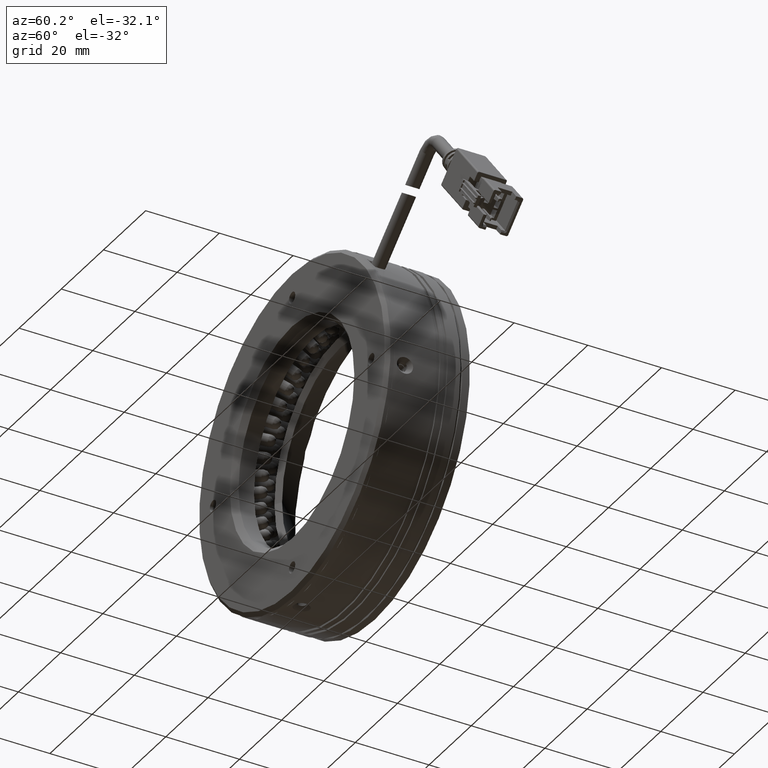
[diagram: clean part render]
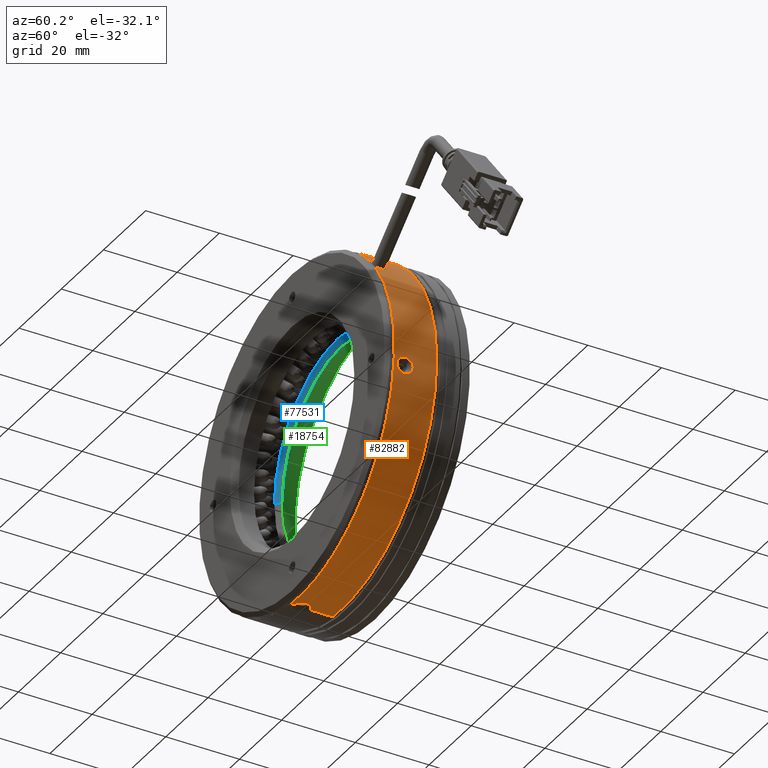
[diagram: same view with three faces highlighted in distinct colors, each labeled with its STEP entity id]
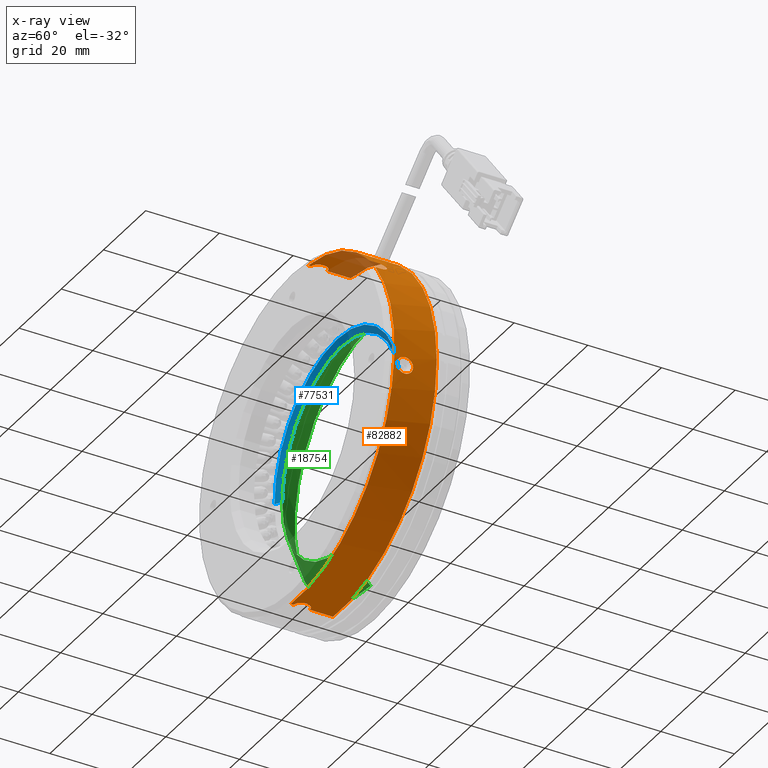
[diagram: x-ray of the same camera — body ghosted, the three highlighted faces saturated]
A machine part, auxiliary view with three faces highlighted in distinct colors.
The next image is the same camera in x-ray (body ghosted, the three faces saturated) — at least one of them is partly hidden behind the body in this view.
Their STEP definitions:

[orange] entity #82882 — the highlighted cylindrical surface (partial cylindrical patch) has radius 45 mm, axis along (0, -1, 0).
#60 = VERTEX_POINT ( 'NONE', #47998 ) ;
#393 = VERTEX_POINT ( 'NONE', #84697 ) ;
#1395 = CIRCLE ( 'NONE', #15986, 45.00000000000000700 ) ;
#2262 = CARTESIAN_POINT ( 'NONE',  ( -48.40538282923641600, 23.12712613698418800, 40.85430346701902200 ) ) ;
#2427 = LINE ( 'NONE', #133774, #82145 ) ;
#2497 = DIRECTION ( 'NONE',  ( -0.0000000000000000000, 1.000000000000000000, -0.0000000000000000000 ) ) ;
#2640 = CARTESIAN_POINT ( 'NONE',  ( -9.196373166500723800, 19.27890473584692900, -8.104605080240970600 ) ) ;
#2992 = CARTESIAN_POINT ( 'NONE',  ( -20.72851498799393300, 10.11989054203920400, 26.51166187494341700 ) ) ;
#3095 = CARTESIAN_POINT ( 'NONE',  ( -9.037750912952809300, 20.90711875958539800, -5.872238690176201800 ) ) ;
#3150 = CARTESIAN_POINT ( 'NONE',  ( -48.21001346499744500, 20.03431808472705100, 40.82943408567331300 ) ) ;
#3939 = ORIENTED_EDGE ( 'NONE', *, *, #86288, .F. ) ;
#4826 = CARTESIAN_POINT ( 'NONE',  ( -49.82683300941115300, 29.97876601230220900, 41.00908266944142600 ) ) ;
#5069 = CARTESIAN_POINT ( 'NONE',  ( -9.048659847270700500, 22.57118920583416300, -6.095365648213209500 ) ) ;
#5253 = CARTESIAN_POINT ( 'NONE',  ( -56.53100831380690700, 22.92321393987761600, -48.72623354329262900 ) ) ;
#5519 = CARTESIAN_POINT ( 'NONE',  ( -9.281916585237301100, 23.45201911957956000, -8.916610106360792500 ) ) ;
#6546 = VECTOR ( 'NONE', #46157, 1000.000000000000000 ) ;
#7577 = CARTESIAN_POINT ( 'NONE',  ( -20.58544596258533600, 21.09543933524702900, 26.35395674876221500 ) ) ;
#8034 = CARTESIAN_POINT ( 'NONE',  ( -18.94148272229450600, 22.13334174654216100, 24.42643509471976100 ) ) ;
#8432 = CARTESIAN_POINT ( 'NONE',  ( -56.02263285757086900, 21.19361178983627500, -48.75200222295365600 ) ) ;
#8480 = CARTESIAN_POINT ( 'NONE',  ( -18.07127207633601200, 20.17876601230220900, 23.31004785121663800 ) ) ;
#8911 = EDGE_LOOP ( 'NONE', ( #44755, #133098, #42022, #11586, #77919, #59740, #90082, #66246, #19947, #29560, #66923, #111739, #129888, #3939 ) ) ;
#8979 = CARTESIAN_POINT ( 'NONE',  ( -9.035356638104536500, 21.47876601230221300, -5.816923839393555600 ) ) ;
#9051 = DIRECTION ( 'NONE',  ( 0.0000000000000000000, -1.000000000000000000, 0.0000000000000000000 ) ) ;
#9755 = LINE ( 'NONE', #14779, #6546 ) ;
#11586 = ORIENTED_EDGE ( 'NONE', *, *, #33100, .T. ) ;
#11913 = VERTEX_POINT ( 'NONE', #52429 ) ;
#12670 = CARTESIAN_POINT ( 'NONE',  ( -9.423535213247674800, 20.91416994906289500, -10.02907784312119700 ) ) ;
#12684 = VERTEX_POINT ( 'NONE', #24488 ) ;
#12741 = CARTESIAN_POINT ( 'NONE',  ( -47.95613583957681700, 22.57678367984259900, 40.79583425891443900 ) ) ;
#13106 = CARTESIAN_POINT ( 'NONE',  ( -9.157432122803056600, 19.29326915871210300, -7.678191594990590100 ) ) ;
#13284 = VERTEX_POINT ( 'NONE', #78441 ) ;
#13560 = CARTESIAN_POINT ( 'NONE',  ( -9.035356638104536500, 21.47876601230221300, -5.816923839393555600 ) ) ;
#13583 = EDGE_CURVE ( 'NONE', #38126, #12684, #53283, .T. ) ;
#13622 = CARTESIAN_POINT ( 'NONE',  ( -48.74051619935037400, 19.56242435983675100, 40.89559018119809500 ) ) ;
#14779 = CARTESIAN_POINT ( 'NONE',  ( -58.15324870099051700, 10.11989054203920400, -48.60492740560779600 ) ) ;
#15556 = CARTESIAN_POINT ( 'NONE',  ( -9.061745141850773100, 22.92354293217826100, -6.339165064754941300 ) ) ;
#15746 = CARTESIAN_POINT ( 'NONE',  ( -57.06461819248328000, 23.39510766476803400, -48.69351844723346500 ) ) ;
#15986 = AXIS2_PLACEMENT_3D ( 'NONE', #25926, #98703, #36370 ) ;
#15993 = CARTESIAN_POINT ( 'NONE',  ( -9.324100918787111800, 23.22167217897775900, -9.272170906268762300 ) ) ;
#16266 = EDGE_CURVE ( 'NONE', #31065, #38126, #78435, .T. ) ;
#18079 = CARTESIAN_POINT ( 'NONE',  ( -20.44073215231570000, 21.43785590262899600, 26.19290404589971600 ) ) ;
#18449 = CARTESIAN_POINT ( 'NONE',  ( -57.86954290923654300, 19.29336201653680400, -48.63059800318932700 ) ) ;
#18500 = CARTESIAN_POINT ( 'NONE',  ( -18.70890669446214000, 21.96725685285192500, 24.13510945193043300 ) ) ;
#18895 = CARTESIAN_POINT ( 'NONE',  ( -56.00904232645730500, 21.47876601230221300, -48.75260658518190800 ) ) ;
#19016 = B_SPLINE_CURVE_WITH_KNOTS ( 'NONE', 3,
 ( #56215, #25736, #108981, #46661, #119558, #57105, #129968, #67545, #5253, #78055, #15746, #88459, #26186, #98953, #36601, #109434 ),
 .UNSPECIFIED., .F., .F.,
 ( 4, 2, 2, 2, 2, 2, 2, 4 ),
 ( 3.252606517456513300E-019, 0.0004262246632663652300, 0.0008524493265327301300, 0.001278673989799094800, 0.001704898653065460000, 0.002557347979598168400, 0.002983572642864522800, 0.003409797306130877200 ),
 .UNSPECIFIED. ) ;
#19203 = EDGE_CURVE ( 'NONE', #118805, #31065, #50923, .T. ) ;
#19947 = ORIENTED_EDGE ( 'NONE', *, *, #83282, .T. ) ;
#21158 = B_SPLINE_CURVE_WITH_KNOTS ( 'NONE', 3,
 ( #22733, #85053, #106014, #43619, #116506, #54143, #126985, #64530, #2262, #75066, #12741, #85488, #23211, #95937, #33623, #106489 ),
 .UNSPECIFIED., .F., .F.,
 ( 4, 2, 2, 2, 2, 2, 2, 4 ),
 ( 1.930964069196683400E-016, 0.0004255080083125127400, 0.0008510160166248323800, 0.001276524024937152000, 0.001702032033249471800, 0.002553048049874117500, 0.002978556058186440300, 0.003404064066498763600 ),
 .UNSPECIFIED. ) ;
#22032 = B_SPLINE_CURVE_WITH_KNOTS ( 'NONE', 3,
 ( #74540, #33121, #74992, #12670, #85429, #23132, #95868, #33559, #106419, #44012, #116878, #54519, #127370, #64926, #2640, #75452, #13106, #85877, #23572, #96324, #34013, #106847, #44459, #117355, #54962, #127811, #65385, #3095, #75892, #13560 ),
 .UNSPECIFIED., .F., .F.,
 ( 4, 2, 2, 2, 2, 2, 2, 2, 2, 2, 2, 2, 2, 2, 4 ),
 ( 0.006821466722284769300, 0.007247788687959249300, 0.007674110653633729200, 0.008100432619308208300, 0.008526754584982688300, 0.009379398516331648200, 0.009805720482006126400, 0.01023204244768060600, 0.01065836441335508600, 0.01108468637902956500, 0.01151100834470404300, 0.01193733031037852300, 0.01236365227605300300, 0.01278997424172748100, 0.01364261817307643700 ),
 .UNSPECIFIED. ) ;
#22733 = CARTESIAN_POINT ( 'NONE',  ( -49.82683300941115300, 23.67876601235933300, 41.00908266944141900 ) ) ;
#23132 = CARTESIAN_POINT ( 'NONE',  ( -9.403472282728476000, 20.51210430229045300, -9.884028967468278600 ) ) ;
#23211 = CARTESIAN_POINT ( 'NONE',  ( -47.75895249829103800, 22.04366486178217200, 40.76859268228344000 ) ) ;
#23572 = CARTESIAN_POINT ( 'NONE',  ( -9.123719149213940200, 19.39273855541922800, -7.266425860280538300 ) ) ;
#24091 = CARTESIAN_POINT ( 'NONE',  ( -49.26443771255621600, 19.35123473814663000, 40.95348258915827700 ) ) ;
#24488 = CARTESIAN_POINT ( 'NONE',  ( -20.72851498799392500, 20.17876601230220900, 26.51166187494340700 ) ) ;
#25736 = CARTESIAN_POINT ( 'NONE',  ( -56.00904232645627400, 21.62228417657475200, -48.75260658517981900 ) ) ;
#25926 = CARTESIAN_POINT ( 'NONE',  ( -53.99004085520083900, 18.47876601230220900, -3.797922368083184200 ) ) ;
#25992 = CARTESIAN_POINT ( 'NONE',  ( -9.094480504870084300, 23.39543802387912700, -6.873030691203771500 ) ) ;
#26186 = CARTESIAN_POINT ( 'NONE',  ( -57.59023702501314500, 23.60629728645816200, -48.65389363443362900 ) ) ;
#26447 = CARTESIAN_POINT ( 'NONE',  ( -9.362670890357478000, 22.92343293318449700, -9.577859657377898000 ) ) ;
#28046 = CARTESIAN_POINT ( 'NONE',  ( -20.72851498799392500, 20.17876601230220900, 26.51166187494340700 ) ) ;
#28495 = CARTESIAN_POINT ( 'NONE',  ( -20.19046024522443600, 21.82735307782764500, 25.91108945551013000 ) ) ;
#28611 = FACE_OUTER_BOUND ( 'NONE', #8911, .T. ) ;
#28809 = DIRECTION ( 'NONE',  ( 0.0000000000000000000, -1.000000000000000000, 0.0000000000000000000 ) ) ;
#28885 = CARTESIAN_POINT ( 'NONE',  ( -57.45475443991330200, 19.39416713489166400, -48.66453321396325300 ) ) ;
#28933 = CARTESIAN_POINT ( 'NONE',  ( -18.50469300673351800, 21.73465688711100800, 23.87516173011059800 ) ) ;
#29422 = B_SPLINE_CURVE_WITH_KNOTS ( 'NONE', 3,
 ( #35965, #98317, #119370, #56899, #129779, #67364, #5069, #77854, #15556, #88267, #25992, #98750, #36415, #109250, #46935, #119804, #57349, #130218, #67801, #5519, #78312, #15993, #88723, #26447, #99205, #36854, #109724, #47380, #120252, #57793 ),
 .UNSPECIFIED., .F., .F.,
 ( 4, 2, 2, 2, 2, 2, 2, 2, 2, 2, 2, 2, 2, 2, 4 ),
 ( 1.296553493390819300E-016, 0.0004263416701429217400, 0.0008526833402857138000, 0.001279025010428506000, 0.001705366680571297900, 0.002558050020856880100, 0.002984391690999670100, 0.003410733361142460100, 0.003837075031285251000, 0.004263416701428039700, 0.004689758371570830100, 0.005116100041713619700, 0.005542441711856410100, 0.005968783381999198800, 0.006821466722284769300 ),
 .UNSPECIFIED. ) ;
#29560 = ORIENTED_EDGE ( 'NONE', *, *, #101023, .T. ) ;
#31065 = VERTEX_POINT ( 'NONE', #107436 ) ;
#31145 = CARTESIAN_POINT ( 'NONE',  ( -18.07127207633601200, 10.11989054203920400, 23.31004785121663800 ) ) ;
#33100 = EDGE_CURVE ( 'NONE', #11913, #118805, #90371, .T. ) ;
#33121 = CARTESIAN_POINT ( 'NONE',  ( -9.432928739715768200, 21.33520844953022800, -10.09583947837401800 ) ) ;
#33559 = CARTESIAN_POINT ( 'NONE',  ( -9.374284394329281500, 20.14690094818905300, -9.666503793739293500 ) ) ;
#33623 = CARTESIAN_POINT ( 'NONE',  ( -47.69212374485612600, 21.62225664744162800, 40.75918974739428800 ) ) ;
#34013 = CARTESIAN_POINT ( 'NONE',  ( -9.095503097160099400, 19.57478584203815700, -6.879166751932180200 ) ) ;
#34066 = CARTESIAN_POINT ( 'NONE',  ( -47.69212374485629600, 21.33524784802810400, 40.75918974739431600 ) ) ;
#34515 = CARTESIAN_POINT ( 'NONE',  ( -49.68383410263679400, 19.27876601224511800, 40.99579603780595200 ) ) ;
#34828 = CARTESIAN_POINT ( 'NONE',  ( -58.15324870099051700, 29.97876601230220900, -48.60492740560779600 ) ) ;
#34886 = VECTOR ( 'NONE', #93418, 1000.000000000000000 ) ;
#35965 = CARTESIAN_POINT ( 'NONE',  ( -9.035356638104536500, 21.47876601230221300, -5.816923839393555600 ) ) ;
#36370 = DIRECTION ( 'NONE',  ( -0.09251572990643723600, 0.0000000000000000000, -0.9957112230561022700 ) ) ;
#36415 = CARTESIAN_POINT ( 'NONE',  ( -9.134147070844049300, 23.60654367320411900, -7.399073203614215700 ) ) ;
#36601 = CARTESIAN_POINT ( 'NONE',  ( -58.01024979421585200, 23.67876601235961700, -48.61821403724328400 ) ) ;
#36854 = CARTESIAN_POINT ( 'NONE',  ( -9.394500947483548400, 22.57386286916476000, -9.818203163204898900 ) ) ;
#37363 = CARTESIAN_POINT ( 'NONE',  ( -20.72851498799392500, 18.47876601230220900, 26.51166187494340700 ) ) ;
#38126 = VERTEX_POINT ( 'NONE', #37363 ) ;
#38285 = DIRECTION ( 'NONE',  ( 0.0000000000000000000, -1.000000000000000000, 0.0000000000000000000 ) ) ;
#38939 = CARTESIAN_POINT ( 'NONE',  ( -19.79326572990874300, 22.13241293493157300, 25.45265284645725500 ) ) ;
#39336 = CARTESIAN_POINT ( 'NONE',  ( -57.07102185263059400, 19.57486285185231300, -48.69248032751416100 ) ) ;
#39383 = CARTESIAN_POINT ( 'NONE',  ( -18.33226102907187600, 21.43927694311820500, 23.65255101794082600 ) ) ;
#40225 = VERTEX_POINT ( 'NONE', #8979 ) ;
#41221 = LINE ( 'NONE', #115436, #65666 ) ;
#42022 = ORIENTED_EDGE ( 'NONE', *, *, #65019, .T. ) ;
#43619 = CARTESIAN_POINT ( 'NONE',  ( -49.26655954757574600, 23.60683018725645600, 40.95370402835546000 ) ) ;
#43957 = CARTESIAN_POINT ( 'NONE',  ( -53.99004085520083900, 10.11989054203920400, -3.797922368083184200 ) ) ;
#44012 = CARTESIAN_POINT ( 'NONE',  ( -9.325397525713178500, 19.72861670052187200, -9.285026964144789100 ) ) ;
#44459 = CARTESIAN_POINT ( 'NONE',  ( -9.073363281985042100, 19.82905610903292600, -6.536882176287007500 ) ) ;
#44520 = CARTESIAN_POINT ( 'NONE',  ( -47.75884884827969000, 20.91432227171809200, 40.76857815717954000 ) ) ;
#44755 = ORIENTED_EDGE ( 'NONE', *, *, #98897, .T. ) ;
#45091 = AXIS2_PLACEMENT_3D ( 'NONE', #43957, #116829, #96269 ) ;
#46157 = DIRECTION ( 'NONE',  ( 0.0000000000000000000, -1.000000000000000000, 0.0000000000000000000 ) ) ;
#46661 = CARTESIAN_POINT ( 'NONE',  ( -56.07635490908497600, 22.04320975288632700, -48.74954098814988900 ) ) ;
#46935 = CARTESIAN_POINT ( 'NONE',  ( -9.169711345240012100, 23.67862728875750000, -7.817654151104304300 ) ) ;
#47380 = CARTESIAN_POINT ( 'NONE',  ( -9.425090936588839300, 22.05041326501890400, -10.04103040876601000 ) ) ;
#47998 = CARTESIAN_POINT ( 'NONE',  ( -18.07127207633601200, 18.47876601230220900, 23.31004785121663800 ) ) ;
#49461 = CARTESIAN_POINT ( 'NONE',  ( -19.53600409081037300, 22.22384890147457500, 25.14922155892651300 ) ) ;
#49839 = CARTESIAN_POINT ( 'NONE',  ( -56.72761516526357200, 19.83040588761976900, -48.71468276097908800 ) ) ;
#49884 = CARTESIAN_POINT ( 'NONE',  ( -18.20010782535061000, 21.09610826914223100, 23.47997121439346200 ) ) ;
#50923 = LINE ( 'NONE', #91094, #75364 ) ;
#51442 = VERTEX_POINT ( 'NONE', #124540 ) ;
#52429 = CARTESIAN_POINT ( 'NONE',  ( -47.69212374485621800, 21.47876601230221300, 40.75918974739428800 ) ) ;
#53283 = LINE ( 'NONE', #2992, #108653 ) ;
#54143 = CARTESIAN_POINT ( 'NONE',  ( -48.87008573620108400, 23.45126977339903000, 40.91005307924793000 ) ) ;
#54519 = CARTESIAN_POINT ( 'NONE',  ( -9.253204517560771300, 19.39440546278932900, -8.659237220207805000 ) ) ;
#54962 = CARTESIAN_POINT ( 'NONE',  ( -9.056890788839243800, 20.14510063666269700, -6.251080664391480500 ) ) ;
#55021 = CARTESIAN_POINT ( 'NONE',  ( -47.90382045231076100, 20.51235070678721300, 40.78863063692857300 ) ) ;
#56215 = CARTESIAN_POINT ( 'NONE',  ( -56.00904232645730500, 21.47876601230221300, -48.75260658518190800 ) ) ;
#56611 = EDGE_CURVE ( 'NONE', #51442, #40225, #22032, .T. ) ;
#56899 = CARTESIAN_POINT ( 'NONE',  ( -9.038423936590312700, 22.04336207554153400, -5.884273271173918300 ) ) ;
#57105 = CARTESIAN_POINT ( 'NONE',  ( -56.22253926950801900, 22.44518131781732600, -48.74254093906889600 ) ) ;
#57349 = CARTESIAN_POINT ( 'NONE',  ( -9.209998432357647100, 23.66426286589231200, -8.243942569782582600 ) ) ;
#57793 = CARTESIAN_POINT ( 'NONE',  ( -9.432928739715768200, 21.47876601230221300, -10.09583947837402300 ) ) ;
#59424 = CARTESIAN_POINT ( 'NONE',  ( -20.71931646937221700, 20.44990131586399000, 26.50157619525649400 ) ) ;
#59740 = ORIENTED_EDGE ( 'NONE', *, *, #16266, .T. ) ;
#59878 = CARTESIAN_POINT ( 'NONE',  ( -19.27733113282018700, 22.23694723107738700, 24.83852325729079500 ) ) ;
#60254 = CARTESIAN_POINT ( 'NONE',  ( -56.27528628540014900, 20.38074834476143900, -48.73998276999648700 ) ) ;
#60303 = CARTESIAN_POINT ( 'NONE',  ( -18.11220037081691800, 20.71719271664750700, 23.36420732076790000 ) ) ;
#62533 = LINE ( 'NONE', #31145, #34886 ) ;
#64530 = CARTESIAN_POINT ( 'NONE',  ( -48.51391069617202600, 23.22025611588450600, 40.86778905310215700 ) ) ;
#64769 = CARTESIAN_POINT ( 'NONE',  ( -53.99004085520083900, 18.47876601230220900, -3.797922368083184200 ) ) ;
#64926 = CARTESIAN_POINT ( 'NONE',  ( -9.210079456083137800, 19.29333293455661300, -8.244780992693735700 ) ) ;
#64987 = CARTESIAN_POINT ( 'NONE',  ( -47.69212374485621800, 21.47876601230221300, 40.75918974739428800 ) ) ;
#65019 = EDGE_CURVE ( 'NONE', #134368, #11913, #21158, .T. ) ;
#65385 = CARTESIAN_POINT ( 'NONE',  ( -9.045426629523715800, 20.51216223667516300, -6.030508742464084200 ) ) ;
#65457 = EDGE_CURVE ( 'NONE', #85939, #134368, #41221, .T. ) ;
#65463 = CARTESIAN_POINT ( 'NONE',  ( -48.12122879372392200, 20.14721948842418100, 40.81780368291725800 ) ) ;
#65666 = VECTOR ( 'NONE', #83987, 1000.000000000000000 ) ;
#66246 = ORIENTED_EDGE ( 'NONE', *, *, #116052, .T. ) ;
#66923 = ORIENTED_EDGE ( 'NONE', *, *, #67930, .F. ) ;
#67364 = CARTESIAN_POINT ( 'NONE',  ( -9.045427950162174800, 22.44542772231398000, -6.030535505886372300 ) ) ;
#67545 = CARTESIAN_POINT ( 'NONE',  ( -56.44160072600369900, 22.81031253618046200, -48.73115973498928400 ) ) ;
#67634 = CYLINDRICAL_SURFACE ( 'NONE', #45091, 45.00000000000000700 ) ;
#67801 = CARTESIAN_POINT ( 'NONE',  ( -9.252725422987632300, 23.56479346918516500, -8.654870774145866400 ) ) ;
#67930 = EDGE_CURVE ( 'NONE', #13284, #121347, #2427, .T. ) ;
#69906 = CARTESIAN_POINT ( 'NONE',  ( -20.65612070785561400, 20.84561447454898100, 26.43207170778496400 ) ) ;
#70293 = CARTESIAN_POINT ( 'NONE',  ( -58.15324870099110700, 19.27876601224744500, -48.60492740561421200 ) ) ;
#70334 = CARTESIAN_POINT ( 'NONE',  ( -19.02262421966800300, 22.17178565665568300, 24.52693195655497500 ) ) ;
#70639 = ORIENTED_EDGE ( 'NONE', *, *, #97317, .T. ) ;
#70739 = CARTESIAN_POINT ( 'NONE',  ( -56.07645946085693100, 20.91386716282195100, -48.74953616834783100 ) ) ;
#70795 = CARTESIAN_POINT ( 'NONE',  ( -18.07127414670740600, 20.31549926839211300, 23.31005059451283000 ) ) ;
#74540 = CARTESIAN_POINT ( 'NONE',  ( -9.432928739715768200, 21.47876601230221300, -10.09583947837402300 ) ) ;
#74992 = CARTESIAN_POINT ( 'NONE',  ( -9.431017160450572600, 21.19359665547183300, -10.08235798785238300 ) ) ;
#75066 = CARTESIAN_POINT ( 'NONE',  ( -48.11262532811259300, 22.82162478716027800, 40.81703808136346400 ) ) ;
#75289 = DIRECTION ( 'NONE',  ( -0.09251572990643894300, 0.0000000000000000000, -0.9957112230561021600 ) ) ;
#75347 = DIRECTION ( 'NONE',  ( -0.0000000000000000000, 1.000000000000000000, -0.0000000000000000000 ) ) ;
#75364 = VECTOR ( 'NONE', #28809, 1000.000000000000000 ) ;
#75452 = CARTESIAN_POINT ( 'NONE',  ( -9.170074848094936100, 19.27862926052420200, -7.821705179166200700 ) ) ;
#75892 = CARTESIAN_POINT ( 'NONE',  ( -9.035356638104534700, 21.19166415651635300, -5.816923839393574300 ) ) ;
#75958 = CARTESIAN_POINT ( 'NONE',  ( -48.50251932310902000, 19.72896451406816700, 40.86666931440509400 ) ) ;
#77854 = CARTESIAN_POINT ( 'NONE',  ( -9.056816090849089600, 22.81063107641539000, -6.249714529259337700 ) ) ;
#77919 = ORIENTED_EDGE ( 'NONE', *, *, #19203, .T. ) ;
#78055 = CARTESIAN_POINT ( 'NONE',  ( -56.82536710326417100, 23.22856751053657100, -48.70894070206906400 ) ) ;
#78312 = CARTESIAN_POINT ( 'NONE',  ( -9.296340187682721600, 23.38274618256622300, -9.040699123146900700 ) ) ;
#78435 = CIRCLE ( 'NONE', #101110, 45.00000000000000700 ) ;
#78441 = CARTESIAN_POINT ( 'NONE',  ( -58.15324870099110700, 19.27876601224744500, -48.60492740561421200 ) ) ;
#78606 = VERTEX_POINT ( 'NONE', #112013 ) ;
#80382 = CARTESIAN_POINT ( 'NONE',  ( -20.54229102367152000, 21.21386081490975400, 26.30612743659540000 ) ) ;
#80711 = FACE_BOUND ( 'NONE', #93980, .T. ) ;
#80801 = CARTESIAN_POINT ( 'NONE',  ( -18.78444551875179500, 22.03115281605873600, 24.23031051217511200 ) ) ;
#81190 = CARTESIAN_POINT ( 'NONE',  ( -56.00904232645627400, 21.33527537716102900, -48.75260658517980500 ) ) ;
#81455 = EDGE_CURVE ( 'NONE', #13284, #78606, #113522, .T. ) ;
#82145 = VECTOR ( 'NONE', #9051, 1000.000000000000000 ) ;
#82882 = ADVANCED_FACE ( 'NONE', ( #80711, #28611 ), #67634, .T. ) ;
#83282 = EDGE_CURVE ( 'NONE', #103408, #60, #62533, .T. ) ;
#83987 = DIRECTION ( 'NONE',  ( 0.0000000000000000000, -1.000000000000000000, 0.0000000000000000000 ) ) ;
#84580 = CARTESIAN_POINT ( 'NONE',  ( -49.82683300941115300, 23.67876601235933300, 41.00908266944141900 ) ) ;
#84697 = CARTESIAN_POINT ( 'NONE',  ( -58.15324870099051700, 23.67876601235964900, -48.60492740560779600 ) ) ;
#85053 = CARTESIAN_POINT ( 'NONE',  ( -49.68386696983061800, 23.67876601235770600, 40.99579909163951900 ) ) ;
#85429 = CARTESIAN_POINT ( 'NONE',  ( -9.417884299373506400, 20.77542835550044500, -9.988693771525355200 ) ) ;
#85488 = CARTESIAN_POINT ( 'NONE',  ( -47.79929753124417900, 22.18216278284320000, 40.77423802445616700 ) ) ;
#85877 = CARTESIAN_POINT ( 'NONE',  ( -9.134331387244847300, 19.35040975012819300, -7.401340627441684600 ) ) ;
#85939 = VERTEX_POINT ( 'NONE', #4826 ) ;
#86288 = EDGE_CURVE ( 'NONE', #106967, #393, #9755, .T. ) ;
#86394 = CARTESIAN_POINT ( 'NONE',  ( -49.12803274348647900, 19.39465463023382300, 40.93883847127476400 ) ) ;
#88267 = CARTESIAN_POINT ( 'NONE',  ( -9.079048573744559600, 23.22891532408257500, -6.633667930266388300 ) ) ;
#88459 = CARTESIAN_POINT ( 'NONE',  ( -57.45346907838680300, 23.56287739437096500, -48.66463116446276900 ) ) ;
#88485 = CARTESIAN_POINT ( 'NONE',  ( -58.15324870099051700, 18.47876601230220900, -48.60492740560779600 ) ) ;
#88723 = CARTESIAN_POINT ( 'NONE',  ( -9.337641160775257600, 23.12847591557143200, -9.381203354783149700 ) ) ;
#90082 = ORIENTED_EDGE ( 'NONE', *, *, #13583, .T. ) ;
#90316 = CARTESIAN_POINT ( 'NONE',  ( -20.72851253357752600, 20.31549500616305800, 26.51165918148401300 ) ) ;
#90371 = B_SPLINE_CURVE_WITH_KNOTS ( 'NONE', 3,
 ( #64987, #34066, #106922, #44520, #117416, #55021, #127884, #65463, #3150, #75958, #13622, #86394, #24091, #96834, #34515, #107354 ),
 .UNSPECIFIED., .F., .F.,
 ( 4, 2, 2, 2, 2, 2, 2, 4 ),
 ( 0.003404064066498763600, 0.003829653709866608300, 0.004255243353234453500, 0.004680832996602298300, 0.005106422639970143100, 0.005957601926705832600, 0.006383191570073676500, 0.006808781213441520400 ),
 .UNSPECIFIED. ) ;
#90765 = CARTESIAN_POINT ( 'NONE',  ( -20.38195679720465800, 21.54351528083258700, 26.12708296502976800 ) ) ;
#91094 = CARTESIAN_POINT ( 'NONE',  ( -49.82683300941115300, 10.11989054203920400, 41.00908266944142600 ) ) ;
#91149 = CARTESIAN_POINT ( 'NONE',  ( -57.59236333527379500, 19.35070183734753600, -48.65372036053302900 ) ) ;
#91197 = CARTESIAN_POINT ( 'NONE',  ( -18.56947481901466900, 21.81926042366455600, 23.95808952127351400 ) ) ;
#93418 = DIRECTION ( 'NONE',  ( 0.0000000000000000000, -1.000000000000000000, 0.0000000000000000000 ) ) ;
#93980 = EDGE_LOOP ( 'NONE', ( #131606, #70639 ) ) ;
#95628 = CARTESIAN_POINT ( 'NONE',  ( -18.07127207633601200, 20.17876601230220900, 23.31004785121663800 ) ) ;
#95868 = CARTESIAN_POINT ( 'NONE',  ( -9.394704685832460100, 20.38634281877027400, -9.819713170359737100 ) ) ;
#95937 = CARTESIAN_POINT ( 'NONE',  ( -47.70559297533004900, 21.76392023476796900, 40.76109962176033000 ) ) ;
#96190 = EDGE_CURVE ( 'NONE', #78606, #393, #19016, .T. ) ;
#96269 = DIRECTION ( 'NONE',  ( -0.09251572990643723600, 0.0000000000000000000, -0.9957112230561022700 ) ) ;
#96324 = CARTESIAN_POINT ( 'NONE',  ( -9.104188302573936300, 19.50551290502483300, -7.003788947392575200 ) ) ;
#96834 = CARTESIAN_POINT ( 'NONE',  ( -49.54277140569577400, 19.29336976263123700, 40.98199908285604900 ) ) ;
#97317 = EDGE_CURVE ( 'NONE', #40225, #51442, #29422, .T. ) ;
#98317 = CARTESIAN_POINT ( 'NONE',  ( -9.035356638104538300, 21.62232357507405900, -5.816923839393550300 ) ) ;
#98703 = DIRECTION ( 'NONE',  ( -0.0000000000000000000, 1.000000000000000000, -0.0000000000000000000 ) ) ;
#98750 = CARTESIAN_POINT ( 'NONE',  ( -9.123385577634643100, 23.56312656181511400, -7.262045893063370400 ) ) ;
#98897 = EDGE_CURVE ( 'NONE', #106967, #85939, #121224, .T. ) ;
#98953 = CARTESIAN_POINT ( 'NONE',  ( -57.86905993171807000, 23.66416226197354400, -48.63064235820650100 ) ) ;
#99205 = CARTESIAN_POINT ( 'NONE',  ( -9.374106119745869500, 22.81243138794164300, -9.665147282345389000 ) ) ;
#100656 = CARTESIAN_POINT ( 'NONE',  ( -53.99004085520083900, 29.97876601230220900, -3.797922368083184200 ) ) ;
#101023 = EDGE_CURVE ( 'NONE', #60, #121347, #1395, .T. ) ;
#101110 = AXIS2_PLACEMENT_3D ( 'NONE', #64769, #2497, #75289 ) ;
#101296 = CARTESIAN_POINT ( 'NONE',  ( -20.03745159664248400, 21.97970642085984500, 25.73653208844535500 ) ) ;
#101683 = CARTESIAN_POINT ( 'NONE',  ( -57.19463433044889900, 19.50626225120493700, -48.68386214523534500 ) ) ;
#101722 = CARTESIAN_POINT ( 'NONE',  ( -18.38517790686276900, 21.54323956663962700, 23.72122060299228300 ) ) ;
#103408 = VERTEX_POINT ( 'NONE', #95628 ) ;
#103595 = B_SPLINE_CURVE_WITH_KNOTS ( 'NONE', 3,
 ( #28046, #90316, #59424, #132299, #69906, #7577, #80382, #18079, #90765, #28495, #101296, #38939, #111777, #49461, #122311, #59878, #132736, #70334, #8034, #80801, #18500, #91197, #28933, #101722, #39383, #112205, #49884, #122758, #60303, #133177, #70795, #8480 ),
 .UNSPECIFIED., .F., .F.,
 ( 4, 2, 2, 2, 2, 2, 2, 2, 2, 2, 2, 2, 2, 2, 2, 4 ),
 ( 0.0000000000000000000, 0.0004043706181792869800, 0.0008087412363585739600, 0.001213111854537861100, 0.001617482472717147900, 0.002426223709075719900, 0.002830594327255002300, 0.003234964945434285000, 0.003639335563613567800, 0.004043706181792850100, 0.004448076799972133300, 0.004852447418151415600, 0.005256818036330698800, 0.005661188654509981100, 0.006065559272689263400, 0.006469929890868545700 ),
 .UNSPECIFIED. ) ;
#106014 = CARTESIAN_POINT ( 'NONE',  ( -49.54325428732536100, 23.66417000806724100, 40.98204446988656700 ) ) ;
#106419 = CARTESIAN_POINT ( 'NONE',  ( -9.362648889339048700, 20.03398909242619300, -9.577676383173361800 ) ) ;
#106489 = CARTESIAN_POINT ( 'NONE',  ( -47.69212374485621800, 21.47876601230221300, 40.75918974739428800 ) ) ;
#106847 = CARTESIAN_POINT ( 'NONE',  ( -9.080142735671684000, 19.73585984562659900, -6.646542798161267900 ) ) ;
#106922 = CARTESIAN_POINT ( 'NONE',  ( -47.70559790597453500, 21.19367439455931300, 40.76110028404956900 ) ) ;
#106967 = VERTEX_POINT ( 'NONE', #34828 ) ;
#107354 = CARTESIAN_POINT ( 'NONE',  ( -49.82683300941115300, 19.27876601224508600, 41.00908266944142600 ) ) ;
#107436 = CARTESIAN_POINT ( 'NONE',  ( -49.82683300941115300, 18.47876601230220900, 41.00908266944142600 ) ) ;
#108653 = VECTOR ( 'NONE', #75347, 1000.000000000000000 ) ;
#108858 = AXIS2_PLACEMENT_3D ( 'NONE', #100656, #38285, #111138 ) ;
#108981 = CARTESIAN_POINT ( 'NONE',  ( -56.02263782582974700, 21.76385763004500300, -48.75200196549404600 ) ) ;
#109250 = CARTESIAN_POINT ( 'NONE',  ( -9.157357290261007400, 23.66419909004780600, -7.677352596830450800 ) ) ;
#109434 = CARTESIAN_POINT ( 'NONE',  ( -58.15324870099051700, 23.67876601235964900, -48.60492740560779600 ) ) ;
#109724 = CARTESIAN_POINT ( 'NONE',  ( -9.403475915533885400, 22.44536978792914900, -9.884055516057419100 ) ) ;
#111138 = DIRECTION ( 'NONE',  ( -0.09251572990643723600, 0.0000000000000000000, -0.9957112230561022700 ) ) ;
#111739 = ORIENTED_EDGE ( 'NONE', *, *, #81455, .T. ) ;
#111777 = CARTESIAN_POINT ( 'NONE',  ( -19.70820987208172100, 22.17164822962780600, 25.35295849918800600 ) ) ;
#112013 = CARTESIAN_POINT ( 'NONE',  ( -56.00904232645730500, 21.47876601230221300, -48.75260658518190800 ) ) ;
#112163 = CARTESIAN_POINT ( 'NONE',  ( -56.83676977345908200, 19.73727590871944700, -48.70794255005574800 ) ) ;
#112205 = CARTESIAN_POINT ( 'NONE',  ( -18.23994114130532700, 21.21647693600408100, 23.53220975183219100 ) ) ;
#113522 = B_SPLINE_CURVE_WITH_KNOTS ( 'NONE', 3,
 ( #70293, #132692, #18449, #91149, #28885, #101683, #39336, #112163, #49839, #122712, #60254, #133131, #70739, #8432, #81190, #18895 ),
 .UNSPECIFIED., .F., .F.,
 ( 4, 2, 2, 2, 2, 2, 2, 4 ),
 ( -0.003409143251228925100, -0.002983000344825306700, -0.002556857438421687900, -0.002130714532018069500, -0.001704571625614451100, -0.0008522858128072216400, -0.0004261429064036106000, 4.336808689942017700E-019 ),
 .UNSPECIFIED. ) ;
#115436 = CARTESIAN_POINT ( 'NONE',  ( -49.82683300941115300, 10.11989054203920400, 41.00908266944142600 ) ) ;
#116052 = EDGE_CURVE ( 'NONE', #12684, #103408, #103595, .T. ) ;
#116506 = CARTESIAN_POINT ( 'NONE',  ( -49.12931414797653000, 23.56336488971232200, 40.93897900983312600 ) ) ;
#116829 = DIRECTION ( 'NONE',  ( 0.0000000000000000000, -1.000000000000000000, 0.0000000000000000000 ) ) ;
#116878 = CARTESIAN_POINT ( 'NONE',  ( -9.296465595405266000, 19.56209400072531300, -9.046918545078000300 ) ) ;
#117355 = CARTESIAN_POINT ( 'NONE',  ( -9.061733000193953600, 20.03409909141984700, -6.338980874475576700 ) ) ;
#117416 = CARTESIAN_POINT ( 'NONE',  ( -47.79921092930784700, 20.77561556787254600, 40.77422602628912100 ) ) ;
#118805 = VERTEX_POINT ( 'NONE', #134956 ) ;
#119370 = CARTESIAN_POINT ( 'NONE',  ( -9.035961583384118300, 21.76393536913259300, -5.830526734790528700 ) ) ;
#119558 = CARTESIAN_POINT ( 'NONE',  ( -56.11706661062234500, 22.18191645673190800, -48.74765595013072800 ) ) ;
#119804 = CARTESIAN_POINT ( 'NONE',  ( -9.195984093889620700, 23.67890276408021700, -8.100556427972991400 ) ) ;
#120252 = CARTESIAN_POINT ( 'NONE',  ( -9.432928739715770000, 21.76589440821774300, -10.09583947837402100 ) ) ;
#121224 = CIRCLE ( 'NONE', #108858, 45.00000000000000700 ) ;
#121347 = VERTEX_POINT ( 'NONE', #88485 ) ;
#122311 = CARTESIAN_POINT ( 'NONE',  ( -19.44981735583183300, 22.23680626633458600, 25.04633520493986200 ) ) ;
#122712 = CARTESIAN_POINT ( 'NONE',  ( -56.43300348445139000, 20.13590723744371000, -48.73199232369520200 ) ) ;
#122758 = CARTESIAN_POINT ( 'NONE',  ( -18.13623167876550100, 20.84596013665243300, 23.39595841634783500 ) ) ;
#124540 = CARTESIAN_POINT ( 'NONE',  ( -9.432928739715768200, 21.47876601230221300, -10.09583947837402300 ) ) ;
#126985 = CARTESIAN_POINT ( 'NONE',  ( -48.74700150058853900, 23.38266917275164000, 40.89574962925014700 ) ) ;
#127370 = CARTESIAN_POINT ( 'NONE',  ( -9.238536167983030000, 19.35098835140031800, -8.522572912162294400 ) ) ;
#127811 = CARTESIAN_POINT ( 'NONE',  ( -9.048737797129087200, 20.38366915543954900, -6.096887342907350200 ) ) ;
#127884 = CARTESIAN_POINT ( 'NONE',  ( -47.96810231265296700, 20.38661572360858500, 40.79739377902617300 ) ) ;
#129779 = CARTESIAN_POINT ( 'NONE',  ( -9.040310033462173300, 22.18210366910398800, -5.925007147798436500 ) ) ;
#129888 = ORIENTED_EDGE ( 'NONE', *, *, #96190, .T. ) ;
#129968 = CARTESIAN_POINT ( 'NONE',  ( -56.28733523526626200, 22.57091630099599700, -48.73931091585924200 ) ) ;
#130218 = CARTESIAN_POINT ( 'NONE',  ( -9.238299583789601100, 23.60712227447621500, -8.520310344755936100 ) ) ;
#131606 = ORIENTED_EDGE ( 'NONE', *, *, #56611, .T. ) ;
#132299 = CARTESIAN_POINT ( 'NONE',  ( -20.68334781163219900, 20.71426011670143900, 26.46203323084475700 ) ) ;
#132692 = CARTESIAN_POINT ( 'NONE',  ( -58.01028266141095500, 19.27876601224743400, -48.61821098342005600 ) ) ;
#132736 = CARTESIAN_POINT ( 'NONE',  ( -19.19023388375970600, 22.22371560815494700, 24.73260572771883000 ) ) ;
#133098 = ORIENTED_EDGE ( 'NONE', *, *, #65457, .T. ) ;
#133131 = CARTESIAN_POINT ( 'NONE',  ( -56.11715394059615400, 20.77536924176090600, -48.74765178755029600 ) ) ;
#133177 = CARTESIAN_POINT ( 'NONE',  ( -18.07967505916916600, 20.45232420899378300, 23.32119184038723200 ) ) ;
#133774 = CARTESIAN_POINT ( 'NONE',  ( -58.15324870099051700, 10.11989054203920400, -48.60492740560779600 ) ) ;
#134368 = VERTEX_POINT ( 'NONE', #84580 ) ;
#134956 = CARTESIAN_POINT ( 'NONE',  ( -49.82683300941115300, 19.27876601224508600, 41.00908266944142600 ) ) ;

[blue] entity #77531 — the highlighted conical surface has half-angle 57.65 deg.
#942 = CIRCLE ( 'NONE', #110511, 29.73161546490723900 ) ;
#4060 = ORIENTED_EDGE ( 'NONE', *, *, #19969, .T. ) ;
#4517 = CARTESIAN_POINT ( 'NONE',  ( -53.99004085520083900, 29.80719313704832600, -3.797922368083184200 ) ) ;
#7121 = FACE_OUTER_BOUND ( 'NONE', #83877, .T. ) ;
#7610 = AXIS2_PLACEMENT_3D ( 'NONE', #4517, #77322, #14992 ) ;
#11641 = CARTESIAN_POINT ( 'NONE',  ( -81.99004085520084600, 29.80719313704832600, -3.797922368083180600 ) ) ;
#14992 = DIRECTION ( 'NONE',  ( 0.0000000000000000000, 0.0000000000000000000, 1.000000000000000000 ) ) ;
#16293 = CARTESIAN_POINT ( 'NONE',  ( -53.99004085520083900, 28.71038147720938500, -3.797922368083184200 ) ) ;
#19815 = LINE ( 'NONE', #35929, #96267 ) ;
#19969 = EDGE_CURVE ( 'NONE', #77917, #90916, #92923, .T. ) ;
#25734 = ORIENTED_EDGE ( 'NONE', *, *, #115663, .T. ) ;
#30866 = CARTESIAN_POINT ( 'NONE',  ( -24.25842539029359200, 28.71038147720938800, -3.797922368083184200 ) ) ;
#33502 = DIRECTION ( 'NONE',  ( -0.0000000000000000000, 1.000000000000000000, -0.0000000000000000000 ) ) ;
#34417 = DIRECTION ( 'NONE',  ( -0.0000000000000000000, 1.000000000000000000, -0.0000000000000000000 ) ) ;
#35929 = CARTESIAN_POINT ( 'NONE',  ( -83.72165632010808200, 28.71038147720938100, -3.797922368083180600 ) ) ;
#39939 = LINE ( 'NONE', #30866, #64349 ) ;
#48948 = CARTESIAN_POINT ( 'NONE',  ( -25.99004085520083500, 29.80719313704832600, -3.797922368083184200 ) ) ;
#49671 = AXIS2_PLACEMENT_3D ( 'NONE', #57302, #130174, #67744 ) ;
#53352 = VERTEX_POINT ( 'NONE', #48948 ) ;
#56271 = EDGE_CURVE ( 'NONE', #77917, #116100, #19815, .T. ) ;
#57302 = CARTESIAN_POINT ( 'NONE',  ( -53.99004085520083900, 28.71038147720938500, -3.797922368083184200 ) ) ;
#60136 = EDGE_CURVE ( 'NONE', #90916, #53352, #113037, .T. ) ;
#61321 = ORIENTED_EDGE ( 'NONE', *, *, #60136, .T. ) ;
#63087 = VERTEX_POINT ( 'NONE', #97817 ) ;
#64349 = VECTOR ( 'NONE', #124722, 1000.000000000000100 ) ;
#65980 = AXIS2_PLACEMENT_3D ( 'NONE', #16293, #109551, #88993 ) ;
#67744 = DIRECTION ( 'NONE',  ( 0.0000000000000000000, 0.0000000000000000000, -1.000000000000000000 ) ) ;
#69753 = EDGE_CURVE ( 'NONE', #116100, #84210, #98892, .T. ) ;
#76300 = CARTESIAN_POINT ( 'NONE',  ( -53.99004085520083900, 29.80719313704832600, 24.20207763191681100 ) ) ;
#77166 = CARTESIAN_POINT ( 'NONE',  ( -53.99004085520083900, 28.71038147720938500, 25.93369309682406500 ) ) ;
#77322 = DIRECTION ( 'NONE',  ( -0.0000000000000000000, 1.000000000000000000, -0.0000000000000000000 ) ) ;
#77531 = ADVANCED_FACE ( 'NONE', ( #7121 ), #104763, .F. ) ;
#77917 = VERTEX_POINT ( 'NONE', #11641 ) ;
#81693 = CARTESIAN_POINT ( 'NONE',  ( -83.72165632010808200, 28.71038147720938500, -3.797922368083180600 ) ) ;
#82879 = EDGE_CURVE ( 'NONE', #84210, #63087, #942, .T. ) ;
#83877 = EDGE_LOOP ( 'NONE', ( #134150, #4060, #61321, #25734, #127180, #117017 ) ) ;
#84210 = VERTEX_POINT ( 'NONE', #77166 ) ;
#88993 = DIRECTION ( 'NONE',  ( 1.000000000000000000, 1.166921775928611900E-016, 0.0000000000000000000 ) ) ;
#90916 = VERTEX_POINT ( 'NONE', #76300 ) ;
#92923 = CIRCLE ( 'NONE', #7610, 27.99999999999999300 ) ;
#95817 = CARTESIAN_POINT ( 'NONE',  ( -53.99004085520083900, 28.71038147720938500, -3.797922368083184200 ) ) ;
#96267 = VECTOR ( 'NONE', #119323, 1000.000000000000000 ) ;
#96744 = CARTESIAN_POINT ( 'NONE',  ( -53.99004085520083900, 29.80719313704832600, -3.797922368083184200 ) ) ;
#97817 = CARTESIAN_POINT ( 'NONE',  ( -24.25842539029358500, 28.71038147720938500, -3.797922368083184200 ) ) ;
#98892 = CIRCLE ( 'NONE', #49671, 29.73161546490723900 ) ;
#104763 = CONICAL_SURFACE ( 'NONE', #65980, 29.73161546490724300, 1.006176705511262900 ) ;
#106370 = DIRECTION ( 'NONE',  ( 0.0000000000000000000, 0.0000000000000000000, -1.000000000000000000 ) ) ;
#107267 = DIRECTION ( 'NONE',  ( 0.0000000000000000000, 0.0000000000000000000, 1.000000000000000000 ) ) ;
#107779 = AXIS2_PLACEMENT_3D ( 'NONE', #96744, #34417, #107267 ) ;
#109551 = DIRECTION ( 'NONE',  ( 1.166921775928612100E-016, -1.000000000000000000, 0.0000000000000000000 ) ) ;
#110511 = AXIS2_PLACEMENT_3D ( 'NONE', #95817, #33502, #106370 ) ;
#113037 = CIRCLE ( 'NONE', #107779, 27.99999999999999300 ) ;
#115663 = EDGE_CURVE ( 'NONE', #53352, #63087, #39939, .T. ) ;
#116100 = VERTEX_POINT ( 'NONE', #81693 ) ;
#117017 = ORIENTED_EDGE ( 'NONE', *, *, #69753, .F. ) ;
#119323 = DIRECTION ( 'NONE',  ( -0.8447922000983550900, -0.5350945137571312400, 1.034572063795101000E-016 ) ) ;
#124722 = DIRECTION ( 'NONE',  ( 0.8447922000983552100, -0.5350945137571310200, 0.0000000000000000000 ) ) ;
#127180 = ORIENTED_EDGE ( 'NONE', *, *, #82879, .F. ) ;
#130174 = DIRECTION ( 'NONE',  ( -0.0000000000000000000, 1.000000000000000000, -0.0000000000000000000 ) ) ;
#134150 = ORIENTED_EDGE ( 'NONE', *, *, #56271, .F. ) ;

[green] entity #18754 — the highlighted conical surface has half-angle 45 deg.
#2687 = VERTEX_POINT ( 'NONE', #114535 ) ;
#4517 = CARTESIAN_POINT ( 'NONE',  ( -53.99004085520083900, 29.80719313704832600, -3.797922368083184200 ) ) ;
#5180 = EDGE_CURVE ( 'NONE', #85762, #13238, #6461, .T. ) ;
#6461 = CIRCLE ( 'NONE', #112852, 36.00000000000000000 ) ;
#7610 = AXIS2_PLACEMENT_3D ( 'NONE', #4517, #77322, #14992 ) ;
#7951 = CARTESIAN_POINT ( 'NONE',  ( -53.99004085520083900, 29.80719313704832600, -3.797922368083184200 ) ) ;
#11641 = CARTESIAN_POINT ( 'NONE',  ( -81.99004085520084600, 29.80719313704832600, -3.797922368083180600 ) ) ;
#12190 = FACE_OUTER_BOUND ( 'NONE', #42199, .T. ) ;
#13238 = VERTEX_POINT ( 'NONE', #118576 ) ;
#14992 = DIRECTION ( 'NONE',  ( 0.0000000000000000000, 0.0000000000000000000, 1.000000000000000000 ) ) ;
#16133 = LINE ( 'NONE', #102336, #71437 ) ;
#16171 = LINE ( 'NONE', #111945, #71470 ) ;
#18429 = DIRECTION ( 'NONE',  ( 0.0000000000000000000, 0.0000000000000000000, 1.000000000000000000 ) ) ;
#18641 = DIRECTION ( 'NONE',  ( 0.0000000000000000000, 0.7071067811865505700, 0.7071067811865444600 ) ) ;
#18754 = ADVANCED_FACE ( 'NONE', ( #12190 ), #134272, .F. ) ;
#19969 = EDGE_CURVE ( 'NONE', #77917, #90916, #92923, .T. ) ;
#30930 = ORIENTED_EDGE ( 'NONE', *, *, #100119, .F. ) ;
#41653 = DIRECTION ( 'NONE',  ( 0.0000000000000000000, 0.0000000000000000000, 1.000000000000000000 ) ) ;
#42199 = EDGE_LOOP ( 'NONE', ( #30930, #73210, #129096, #125854, #62804 ) ) ;
#50789 = EDGE_CURVE ( 'NONE', #90916, #85762, #16133, .T. ) ;
#51866 = AXIS2_PLACEMENT_3D ( 'NONE', #103580, #135021, #41653 ) ;
#60593 = CARTESIAN_POINT ( 'NONE',  ( -53.99004085520083900, 37.80719313704840100, -3.797922368083184200 ) ) ;
#62804 = ORIENTED_EDGE ( 'NONE', *, *, #19969, .F. ) ;
#64431 = CARTESIAN_POINT ( 'NONE',  ( -53.99004085520083900, 37.80719313704840100, 32.20207763191682200 ) ) ;
#71078 = DIRECTION ( 'NONE',  ( 0.0000000000000000000, 0.0000000000000000000, -1.000000000000000000 ) ) ;
#71437 = VECTOR ( 'NONE', #18641, 1000.000000000000000 ) ;
#71470 = VECTOR ( 'NONE', #111490, 1000.000000000000000 ) ;
#73210 = ORIENTED_EDGE ( 'NONE', *, *, #97441, .T. ) ;
#76300 = CARTESIAN_POINT ( 'NONE',  ( -53.99004085520083900, 29.80719313704832600, 24.20207763191681100 ) ) ;
#77322 = DIRECTION ( 'NONE',  ( -0.0000000000000000000, 1.000000000000000000, -0.0000000000000000000 ) ) ;
#77917 = VERTEX_POINT ( 'NONE', #11641 ) ;
#80734 = DIRECTION ( 'NONE',  ( -0.0000000000000000000, 1.000000000000000000, -0.0000000000000000000 ) ) ;
#85073 = CIRCLE ( 'NONE', #134386, 27.99999999999999300 ) ;
#85762 = VERTEX_POINT ( 'NONE', #64431 ) ;
#90916 = VERTEX_POINT ( 'NONE', #76300 ) ;
#92923 = CIRCLE ( 'NONE', #7610, 27.99999999999999300 ) ;
#97441 = EDGE_CURVE ( 'NONE', #2687, #13238, #16171, .T. ) ;
#100119 = EDGE_CURVE ( 'NONE', #2687, #77917, #85073, .T. ) ;
#102336 = CARTESIAN_POINT ( 'NONE',  ( -53.99004085520083900, 37.80719313704840100, 32.20207763191682200 ) ) ;
#103580 = CARTESIAN_POINT ( 'NONE',  ( -53.99004085520083900, 37.80719313704840100, -3.797922368083184200 ) ) ;
#111490 = DIRECTION ( 'NONE',  ( 8.659560562354895900E-017, 0.7071067811865505700, -0.7071067811865444600 ) ) ;
#111945 = CARTESIAN_POINT ( 'NONE',  ( -53.99004085520083200, 37.80719313704840100, -39.79792236808318500 ) ) ;
#112852 = AXIS2_PLACEMENT_3D ( 'NONE', #60593, #133458, #71078 ) ;
#114535 = CARTESIAN_POINT ( 'NONE',  ( -53.99004085520083200, 29.80719313704832600, -31.79792236808318200 ) ) ;
#118576 = CARTESIAN_POINT ( 'NONE',  ( -53.99004085520083200, 37.80719313704840100, -39.79792236808318500 ) ) ;
#125854 = ORIENTED_EDGE ( 'NONE', *, *, #50789, .F. ) ;
#129096 = ORIENTED_EDGE ( 'NONE', *, *, #5180, .F. ) ;
#133458 = DIRECTION ( 'NONE',  ( 0.0000000000000000000, -1.000000000000000000, 0.0000000000000000000 ) ) ;
#134272 = CONICAL_SURFACE ( 'NONE', #51866, 36.00000000000000700, 0.7853981633974439500 ) ;
#134386 = AXIS2_PLACEMENT_3D ( 'NONE', #7951, #80734, #18429 ) ;
#135021 = DIRECTION ( 'NONE',  ( 0.0000000000000000000, 1.000000000000000000, 0.0000000000000000000 ) ) ;